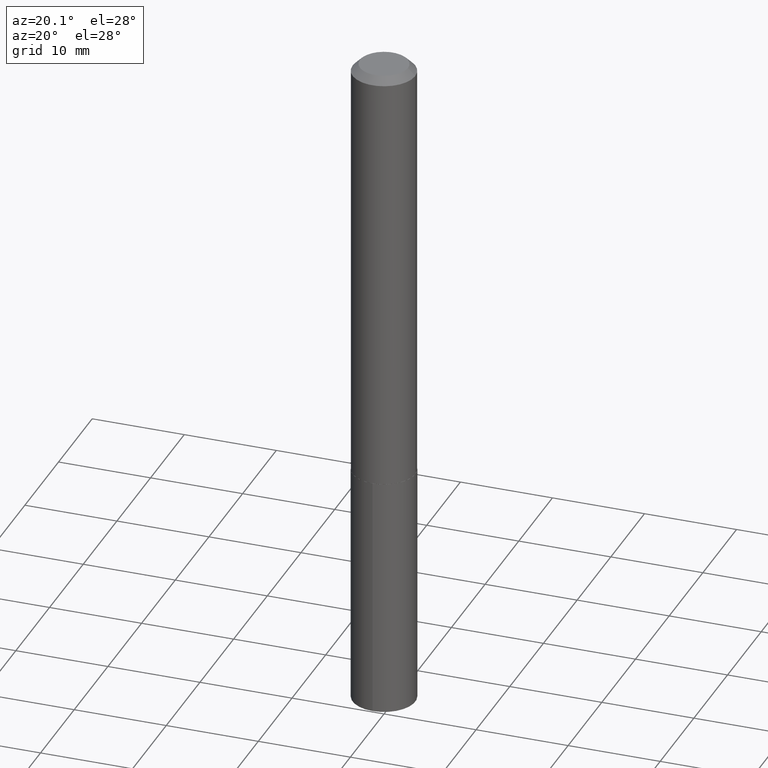
[diagram: clean part render]
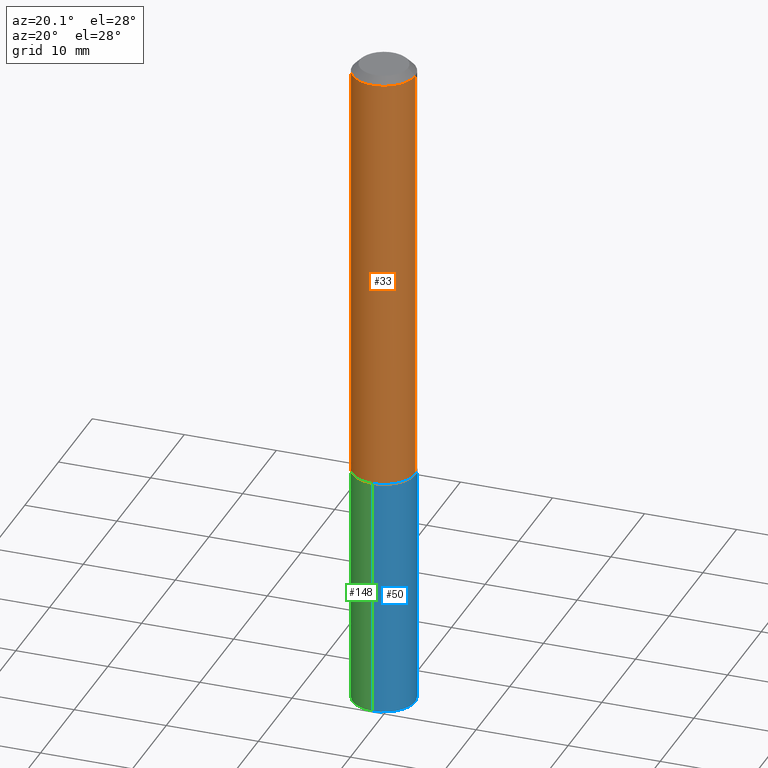
[diagram: same view with three faces highlighted in distinct colors, each labeled with its STEP entity id]
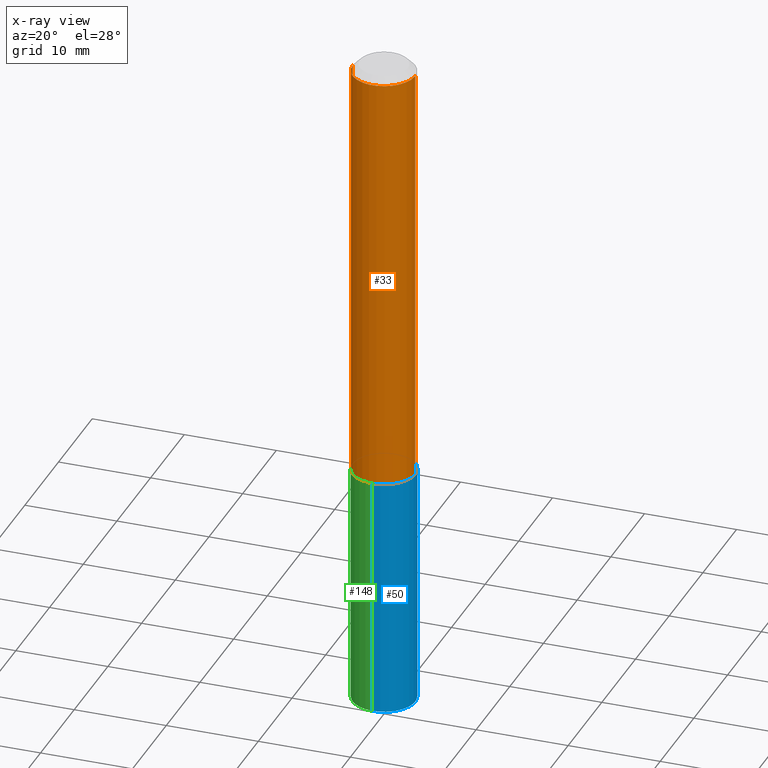
[diagram: x-ray of the same camera — body ghosted, the three highlighted faces saturated]
A machine part, auxiliary view with three faces highlighted in distinct colors.
The next image is the same camera in x-ray (body ghosted, the three faces saturated) — at least one of them is partly hidden behind the body in this view.
Their STEP definitions:

[orange] entity #33 — the highlighted cylindrical surface (edge-blend (fillet) strip) has radius 3.3998 mm, axis along (-0, 0, 1).
#5 = DIRECTION ( 'NONE',  ( -2.445468806185136877E-29, 3.491481338843145188E-15, 1.000000000000000000 ) ) ;
#12 = CARTESIAN_POINT ( 'NONE',  ( 0.1338499999999999968, -1.043778346247155835E-15, -0.03125000000000021511 ) ) ;
#33 = ADVANCED_FACE ( 'NONE', ( #164 ), #80, .T. ) ;
#47 = VERTEX_POINT ( 'NONE', #12 ) ;
#48 = AXIS2_PLACEMENT_3D ( 'NONE', #51, #321, #54 ) ;
#51 = CARTESIAN_POINT ( 'NONE',  ( 0.000000000000000000, 0.000000000000000000, 0.000000000000000000 ) ) ;
#54 = DIRECTION ( 'NONE',  ( 1.000000000000000000, -6.982962677686266711E-15, 4.876176775795934672E-29 ) ) ;
#58 = CARTESIAN_POINT ( 'NONE',  ( 7.642090019328604414E-31, -1.091087918388490513E-16, -0.03125000000000021511 ) ) ;
#62 = AXIS2_PLACEMENT_3D ( 'NONE', #58, #207, #93 ) ;
#79 = DIRECTION ( 'NONE',  ( -2.445468806185136597E-29, 3.491481338843145583E-15, 1.000000000000000000 ) ) ;
#80 = CYLINDRICAL_SURFACE ( 'NONE', #48, 0.1338500000000001078 ) ;
#84 = ORIENTED_EDGE ( 'NONE', *, *, #388, .T. ) ;
#93 = DIRECTION ( 'NONE',  ( 1.000000000000000000, -6.982962677686266711E-15, 0.000000000000000000 ) ) ;
#97 = CIRCLE ( 'NONE', #312, 0.1338500000000002188 ) ;
#112 = CARTESIAN_POINT ( 'NONE',  ( 4.504553540993022477E-29, -6.431308626149075527E-15, -1.842000000000000526 ) ) ;
#117 = ORIENTED_EDGE ( 'NONE', *, *, #242, .T. ) ;
#134 = VERTEX_POINT ( 'NONE', #335 ) ;
#155 = ORIENTED_EDGE ( 'NONE', *, *, #181, .F. ) ;
#164 = FACE_OUTER_BOUND ( 'NONE', #221, .T. ) ;
#181 = EDGE_CURVE ( 'NONE', #295, #192, #238, .T. ) ;
#192 = VERTEX_POINT ( 'NONE', #269 ) ;
#205 = ORIENTED_EDGE ( 'NONE', *, *, #318, .F. ) ;
#207 = DIRECTION ( 'NONE',  ( -2.445468806185136597E-29, 3.491481338843145583E-15, 1.000000000000000000 ) ) ;
#210 = CARTESIAN_POINT ( 'NONE',  ( -0.1338500000000001078, 9.510614518148948646E-16, -6.583994618306196527E-30 ) ) ;
#213 = VECTOR ( 'NONE', #326, 39.37007874015748143 ) ;
#221 = EDGE_LOOP ( 'NONE', ( #155, #84, #117, #205 ) ) ;
#224 = CIRCLE ( 'NONE', #62, 0.1338499999999999968 ) ;
#238 = LINE ( 'NONE', #210, #213 ) ;
#242 = EDGE_CURVE ( 'NONE', #134, #47, #337, .T. ) ;
#244 = CARTESIAN_POINT ( 'NONE',  ( -0.1338500000000002188, -5.480247174334179676E-15, -1.842000000000000526 ) ) ;
#269 = CARTESIAN_POINT ( 'NONE',  ( -0.1338499999999999968, -2.319147257179066069E-15, -0.03125000000000021511 ) ) ;
#295 = VERTEX_POINT ( 'NONE', #244 ) ;
#309 = CARTESIAN_POINT ( 'NONE',  ( 0.1338500000000001078, -9.346695544083075234E-16, 6.526762614402863887E-30 ) ) ;
#312 = AXIS2_PLACEMENT_3D ( 'NONE', #112, #79, #314 ) ;
#314 = DIRECTION ( 'NONE',  ( 1.000000000000000000, -6.982962677686269866E-15, 0.000000000000000000 ) ) ;
#318 = EDGE_CURVE ( 'NONE', #192, #47, #224, .T. ) ;
#321 = DIRECTION ( 'NONE',  ( -2.445468806185136597E-29, 3.491481338843145583E-15, 1.000000000000000000 ) ) ;
#326 = DIRECTION ( 'NONE',  ( -2.445468806185136877E-29, 3.491481338843145188E-15, 1.000000000000000000 ) ) ;
#335 = CARTESIAN_POINT ( 'NONE',  ( 0.1338500000000002188, -7.365978180557384825E-15, -1.842000000000000526 ) ) ;
#337 = LINE ( 'NONE', #309, #371 ) ;
#371 = VECTOR ( 'NONE', #5, 39.37007874015748143 ) ;
#388 = EDGE_CURVE ( 'NONE', #295, #134, #97, .T. ) ;

[blue] entity #50 — the highlighted cylindrical surface (edge-blend (fillet) strip) has radius 3.3998 mm, axis along (-0, 0, 1).
#2 = VERTEX_POINT ( 'NONE', #315 ) ;
#7 = EDGE_CURVE ( 'NONE', #200, #369, #129, .T. ) ;
#18 = EDGE_LOOP ( 'NONE', ( #250, #184, #385, #72 ) ) ;
#25 = VECTOR ( 'NONE', #354, 39.37007874015748143 ) ;
#50 = ADVANCED_FACE ( 'NONE', ( #169 ), #293, .T. ) ;
#67 = CARTESIAN_POINT ( 'NONE',  ( 9.510614518149640872E-16, 0.1338499999999935297, -1.842500000000000915 ) ) ;
#72 = ORIENTED_EDGE ( 'NONE', *, *, #78, .F. ) ;
#78 = EDGE_CURVE ( 'NONE', #200, #2, #328, .T. ) ;
#82 = DIRECTION ( 'NONE',  ( -2.445609890666665259E-29, 3.491279297835566768E-15, 1.000000000000000000 ) ) ;
#85 = DIRECTION ( 'NONE',  ( -2.445609890666665259E-29, 3.491279297835566768E-15, 1.000000000000000000 ) ) ;
#107 = EDGE_CURVE ( 'NONE', #2, #137, #174, .T. ) ;
#129 = CIRCLE ( 'NONE', #158, 0.1338499999999999968 ) ;
#137 = VERTEX_POINT ( 'NONE', #67 ) ;
#140 = DIRECTION ( 'NONE',  ( -6.982962677686265133E-15, -1.000000000000000000, 4.081954417130015942E-15 ) ) ;
#156 = EDGE_CURVE ( 'NONE', #369, #137, #271, .T. ) ;
#158 = AXIS2_PLACEMENT_3D ( 'NONE', #348, #85, #140 ) ;
#159 = CARTESIAN_POINT ( 'NONE',  ( 9.510614518149640872E-16, 0.1338499999999899492, -2.877535000593094860 ) ) ;
#169 = FACE_OUTER_BOUND ( 'NONE', #18, .T. ) ;
#174 = CIRCLE ( 'NONE', #378, 0.1338499999999999968 ) ;
#176 = DIRECTION ( 'NONE',  ( -2.445609890666665259E-29, 3.491279297835566768E-15, 1.000000000000000000 ) ) ;
#184 = ORIENTED_EDGE ( 'NONE', *, *, #156, .T. ) ;
#200 = VERTEX_POINT ( 'NONE', #294 ) ;
#208 = AXIS2_PLACEMENT_3D ( 'NONE', #252, #82, #316 ) ;
#241 = DIRECTION ( 'NONE',  ( -6.982962677686265133E-15, -1.000000000000000000, 4.081954417130015942E-15 ) ) ;
#250 = ORIENTED_EDGE ( 'NONE', *, *, #7, .T. ) ;
#252 = CARTESIAN_POINT ( 'NONE',  ( 4.505776275396114718E-29, -6.433054366818497031E-15, -1.842500000000000249 ) ) ;
#264 = CARTESIAN_POINT ( 'NONE',  ( -9.346695544082615722E-16, -0.1338500000000064361, -1.842499999999999805 ) ) ;
#267 = DIRECTION ( 'NONE',  ( -2.445609890666665259E-29, 3.491279297835566768E-15, 1.000000000000000000 ) ) ;
#271 = LINE ( 'NONE', #304, #25 ) ;
#293 = CYLINDRICAL_SURFACE ( 'NONE', #208, 0.1338499999999999968 ) ;
#294 = CARTESIAN_POINT ( 'NONE',  ( -9.346695544082361315E-16, -0.1338500000000100165, -2.877535000593093972 ) ) ;
#301 = CARTESIAN_POINT ( 'NONE',  ( 4.505776275396114718E-29, -6.433054366818497031E-15, -1.842500000000000249 ) ) ;
#304 = CARTESIAN_POINT ( 'NONE',  ( 9.510614518149390408E-16, 0.1338499999999935575, -1.842500000000000915 ) ) ;
#315 = CARTESIAN_POINT ( 'NONE',  ( -9.346695544082615722E-16, -0.1338500000000064361, -1.842499999999999805 ) ) ;
#316 = DIRECTION ( 'NONE',  ( -6.982962677686265133E-15, -1.000000000000000000, 4.081954417130015942E-15 ) ) ;
#328 = LINE ( 'NONE', #264, #350 ) ;
#348 = CARTESIAN_POINT ( 'NONE',  ( 7.037068110032762718E-29, -1.004665063692438826E-14, -2.877535000593094416 ) ) ;
#350 = VECTOR ( 'NONE', #267, 39.37007874015748143 ) ;
#354 = DIRECTION ( 'NONE',  ( -2.445609890666665259E-29, 3.491279297835566768E-15, 1.000000000000000000 ) ) ;
#369 = VERTEX_POINT ( 'NONE', #159 ) ;
#378 = AXIS2_PLACEMENT_3D ( 'NONE', #301, #176, #241 ) ;
#385 = ORIENTED_EDGE ( 'NONE', *, *, #107, .F. ) ;

[green] entity #148 — the highlighted cylindrical surface (edge-blend (fillet) strip) has radius 3.3998 mm, axis along (-0, 0, 1).
#2 = VERTEX_POINT ( 'NONE', #315 ) ;
#23 = DIRECTION ( 'NONE',  ( -2.445609890666665259E-29, 3.491279297835566768E-15, 1.000000000000000000 ) ) ;
#25 = VECTOR ( 'NONE', #354, 39.37007874015748143 ) ;
#67 = CARTESIAN_POINT ( 'NONE',  ( 9.510614518149640872E-16, 0.1338499999999935297, -1.842500000000000915 ) ) ;
#78 = EDGE_CURVE ( 'NONE', #200, #2, #328, .T. ) ;
#86 = EDGE_CURVE ( 'NONE', #369, #200, #193, .T. ) ;
#92 = CARTESIAN_POINT ( 'NONE',  ( 4.505776275396114718E-29, -6.433054366818497031E-15, -1.842500000000000249 ) ) ;
#122 = DIRECTION ( 'NONE',  ( -6.982962677686265133E-15, -1.000000000000000000, 4.081954417130015942E-15 ) ) ;
#136 = ORIENTED_EDGE ( 'NONE', *, *, #78, .T. ) ;
#137 = VERTEX_POINT ( 'NONE', #67 ) ;
#143 = DIRECTION ( 'NONE',  ( -6.982962677686265133E-15, -1.000000000000000000, 4.081954417130015942E-15 ) ) ;
#148 = ADVANCED_FACE ( 'NONE', ( #361 ), #352, .T. ) ;
#156 = EDGE_CURVE ( 'NONE', #369, #137, #271, .T. ) ;
#159 = CARTESIAN_POINT ( 'NONE',  ( 9.510614518149640872E-16, 0.1338499999999899492, -2.877535000593094860 ) ) ;
#160 = CIRCLE ( 'NONE', #340, 0.1338499999999999968 ) ;
#177 = DIRECTION ( 'NONE',  ( -2.445609890666665259E-29, 3.491279297835566768E-15, 1.000000000000000000 ) ) ;
#179 = DIRECTION ( 'NONE',  ( -2.445609890666665259E-29, 3.491279297835566768E-15, 1.000000000000000000 ) ) ;
#193 = CIRCLE ( 'NONE', #323, 0.1338499999999999968 ) ;
#200 = VERTEX_POINT ( 'NONE', #294 ) ;
#201 = AXIS2_PLACEMENT_3D ( 'NONE', #355, #179, #230 ) ;
#202 = EDGE_CURVE ( 'NONE', #137, #2, #160, .T. ) ;
#206 = CARTESIAN_POINT ( 'NONE',  ( 7.037068110032762718E-29, -1.004665063692438826E-14, -2.877535000593094416 ) ) ;
#230 = DIRECTION ( 'NONE',  ( -6.982962677686265133E-15, -1.000000000000000000, 4.081954417130015942E-15 ) ) ;
#234 = ORIENTED_EDGE ( 'NONE', *, *, #156, .F. ) ;
#246 = EDGE_LOOP ( 'NONE', ( #234, #365, #136, #329 ) ) ;
#264 = CARTESIAN_POINT ( 'NONE',  ( -9.346695544082615722E-16, -0.1338500000000064361, -1.842499999999999805 ) ) ;
#267 = DIRECTION ( 'NONE',  ( -2.445609890666665259E-29, 3.491279297835566768E-15, 1.000000000000000000 ) ) ;
#271 = LINE ( 'NONE', #304, #25 ) ;
#294 = CARTESIAN_POINT ( 'NONE',  ( -9.346695544082361315E-16, -0.1338500000000100165, -2.877535000593093972 ) ) ;
#304 = CARTESIAN_POINT ( 'NONE',  ( 9.510614518149390408E-16, 0.1338499999999935575, -1.842500000000000915 ) ) ;
#315 = CARTESIAN_POINT ( 'NONE',  ( -9.346695544082615722E-16, -0.1338500000000064361, -1.842499999999999805 ) ) ;
#323 = AXIS2_PLACEMENT_3D ( 'NONE', #206, #177, #122 ) ;
#328 = LINE ( 'NONE', #264, #350 ) ;
#329 = ORIENTED_EDGE ( 'NONE', *, *, #202, .F. ) ;
#340 = AXIS2_PLACEMENT_3D ( 'NONE', #92, #23, #143 ) ;
#350 = VECTOR ( 'NONE', #267, 39.37007874015748143 ) ;
#352 = CYLINDRICAL_SURFACE ( 'NONE', #201, 0.1338499999999999968 ) ;
#354 = DIRECTION ( 'NONE',  ( -2.445609890666665259E-29, 3.491279297835566768E-15, 1.000000000000000000 ) ) ;
#355 = CARTESIAN_POINT ( 'NONE',  ( 4.505776275396114718E-29, -6.433054366818497031E-15, -1.842500000000000249 ) ) ;
#361 = FACE_OUTER_BOUND ( 'NONE', #246, .T. ) ;
#365 = ORIENTED_EDGE ( 'NONE', *, *, #86, .T. ) ;
#369 = VERTEX_POINT ( 'NONE', #159 ) ;